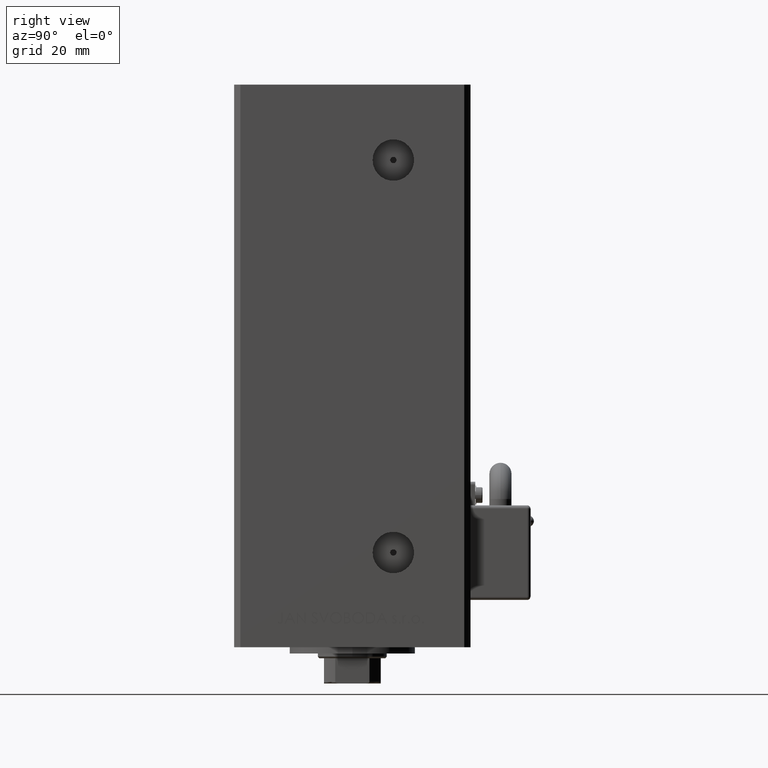
[diagram: clean part render]
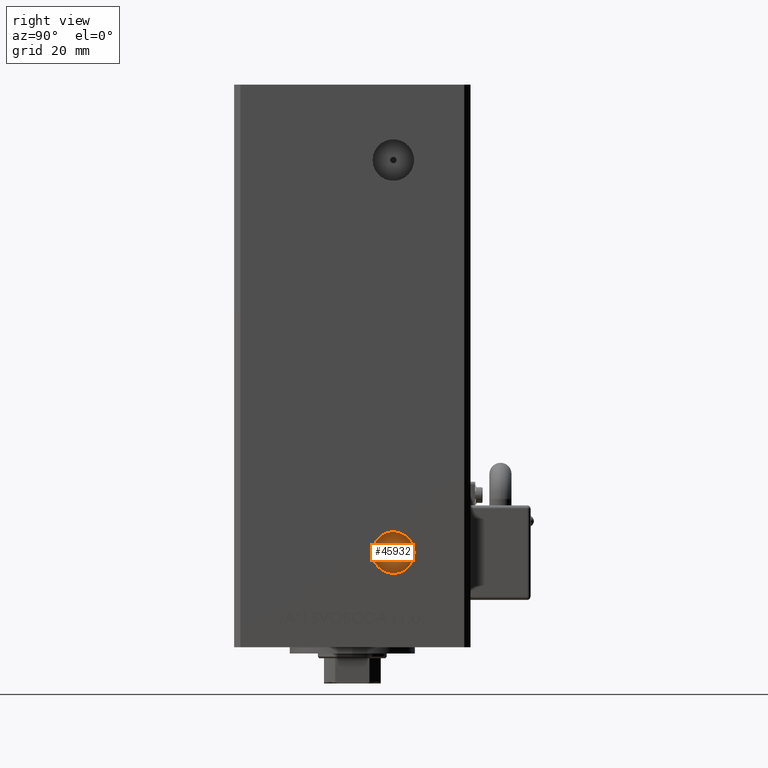
[diagram: same view with one face highlighted and labeled with its STEP entity id]
A machine part, right view. The second image highlights one B-rep face of the part: STEP entity #45932.
In plain terms, the highlighted planar face has unit normal (1, -0, 0).
Its self-contained STEP definition (entity closure, byte-faithful):
#1987 = EDGE_LOOP ( 'NONE', ( #6114, #18735 ) ) ;
#2125 = EDGE_CURVE ( 'NONE', #36628, #43535, #15024, .T. ) ;
#2229 = CARTESIAN_POINT ( 'NONE',  ( 29.50000000000000000, 13.00000000000000355, 14.99999999999998579 ) ) ;
#2828 = EDGE_CURVE ( 'NONE', #36551, #45903, #49614, .T. ) ;
#3720 = DIRECTION ( 'NONE',  ( 0.000000000000000000, 1.000000000000000000, 0.000000000000000000 ) ) ;
#4080 = AXIS2_PLACEMENT_3D ( 'NONE', #45502, #10882, #50487 ) ;
#6114 = ORIENTED_EDGE ( 'NONE', *, *, #2125, .T. ) ;
#7171 = CARTESIAN_POINT ( 'NONE',  ( 29.50000000000000000, 13.00000000000000355, 14.99999999999998579 ) ) ;
#9333 = DIRECTION ( 'NONE',  ( 1.000000000000000000, -2.275047181608927644E-16, 0.000000000000000000 ) ) ;
#10682 = CARTESIAN_POINT ( 'NONE',  ( 29.50000000000000000, 13.00000000000000355, 14.99999999999998579 ) ) ;
#10882 = DIRECTION ( 'NONE',  ( 1.000000000000000000, -2.275047181608927644E-16, 0.000000000000000000 ) ) ;
#11763 = CARTESIAN_POINT ( 'NONE',  ( 29.50000000000000000, 14.00000000000000533, 14.99999999999998579 ) ) ;
#13428 = DIRECTION ( 'NONE',  ( 1.000000000000000000, -2.275047181608927644E-16, 0.000000000000000000 ) ) ;
#14397 = PLANE ( 'NONE',  #50403 ) ;
#15024 = CIRCLE ( 'NONE', #28487, 6.580000000000004512 ) ;
#15852 = AXIS2_PLACEMENT_3D ( 'NONE', #17004, #9333, #33084 ) ;
#17004 = CARTESIAN_POINT ( 'NONE',  ( 29.50000000000000000, 13.00000000000000355, 14.99999999999998579 ) ) ;
#18735 = ORIENTED_EDGE ( 'NONE', *, *, #44928, .T. ) ;
#20484 = CARTESIAN_POINT ( 'NONE',  ( 29.50000000000000000, 19.58000000000000540, 14.99999999999998579 ) ) ;
#21349 = CARTESIAN_POINT ( 'NONE',  ( 29.50000000000000000, 12.00000000000000000, 14.99999999999998579 ) ) ;
#22819 = ORIENTED_EDGE ( 'NONE', *, *, #2828, .F. ) ;
#27640 = AXIS2_PLACEMENT_3D ( 'NONE', #2229, #46841, #29711 ) ;
#28487 = AXIS2_PLACEMENT_3D ( 'NONE', #7171, #39619, #3720 ) ;
#29513 = DIRECTION ( 'NONE',  ( 2.275047181608927644E-16, 1.000000000000000000, 0.000000000000000000 ) ) ;
#29711 = DIRECTION ( 'NONE',  ( 0.000000000000000000, 1.000000000000000000, 0.000000000000000000 ) ) ;
#31838 = CIRCLE ( 'NONE', #15852, 1.000000000000002665 ) ;
#33084 = DIRECTION ( 'NONE',  ( 0.000000000000000000, 1.000000000000000000, 0.000000000000000000 ) ) ;
#35036 = EDGE_LOOP ( 'NONE', ( #22819, #39245 ) ) ;
#36551 = VERTEX_POINT ( 'NONE', #11763 ) ;
#36628 = VERTEX_POINT ( 'NONE', #20484 ) ;
#39245 = ORIENTED_EDGE ( 'NONE', *, *, #46273, .F. ) ;
#39619 = DIRECTION ( 'NONE',  ( 1.000000000000000000, -2.275047181608927644E-16, 0.000000000000000000 ) ) ;
#43535 = VERTEX_POINT ( 'NONE', #46226 ) ;
#44928 = EDGE_CURVE ( 'NONE', #43535, #36628, #48728, .T. ) ;
#45502 = CARTESIAN_POINT ( 'NONE',  ( 29.50000000000000000, 13.00000000000000355, 14.99999999999998579 ) ) ;
#45903 = VERTEX_POINT ( 'NONE', #21349 ) ;
#45932 = ADVANCED_FACE ( 'NONE', ( #47115, #49843 ), #14397, .T. ) ;
#46226 = CARTESIAN_POINT ( 'NONE',  ( 29.50000000000000000, 6.419999999999997264, 14.99999999999998579 ) ) ;
#46273 = EDGE_CURVE ( 'NONE', #45903, #36551, #31838, .T. ) ;
#46841 = DIRECTION ( 'NONE',  ( 1.000000000000000000, -2.275047181608927644E-16, 0.000000000000000000 ) ) ;
#47115 = FACE_BOUND ( 'NONE', #35036, .T. ) ;
#48728 = CIRCLE ( 'NONE', #27640, 6.580000000000004512 ) ;
#49614 = CIRCLE ( 'NONE', #4080, 1.000000000000002665 ) ;
#49843 = FACE_OUTER_BOUND ( 'NONE', #1987, .T. ) ;
#50403 = AXIS2_PLACEMENT_3D ( 'NONE', #10682, #13428, #29513 ) ;
#50487 = DIRECTION ( 'NONE',  ( 0.000000000000000000, 1.000000000000000000, 0.000000000000000000 ) ) ;